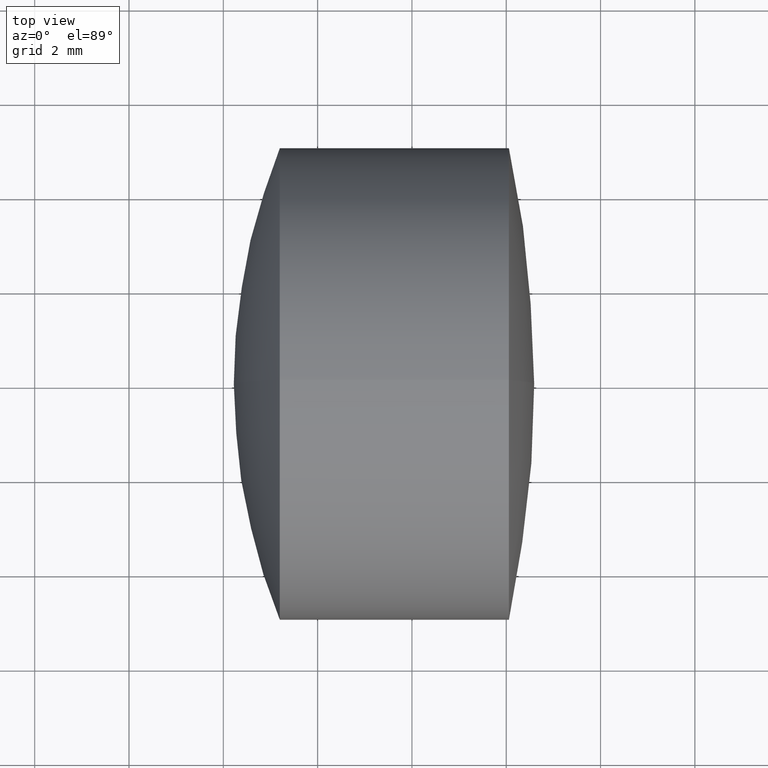
[diagram: clean part render]
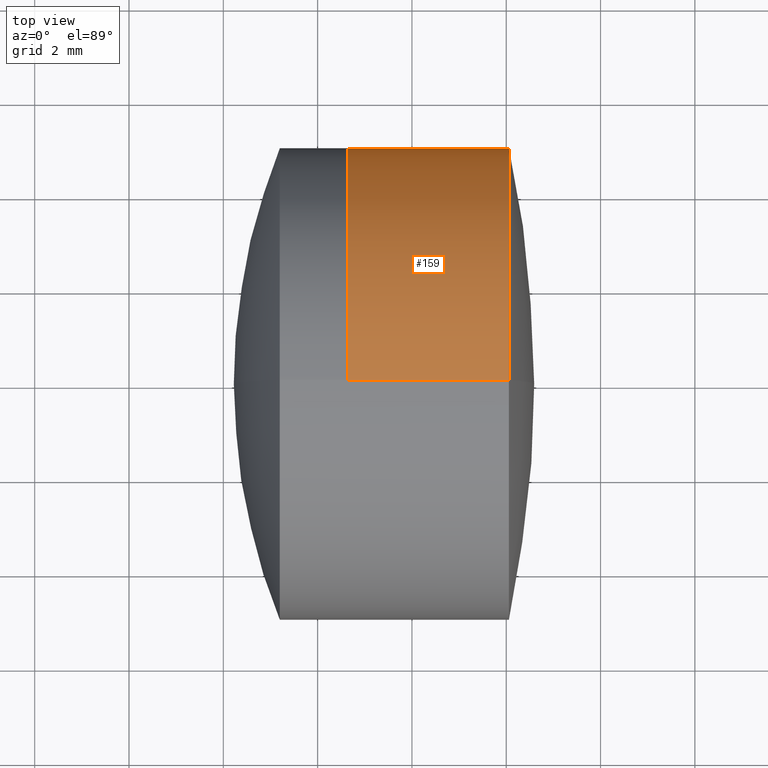
[diagram: same view with one face highlighted and labeled with its STEP entity id]
A machine part, top view. The second image highlights one B-rep face of the part: STEP entity #159.
In plain terms, the highlighted cylindrical surface (partial cylindrical patch) has radius 5 mm, axis along (-1, -0, -0).
Its self-contained STEP definition (entity closure, byte-faithful):
#18 = LINE ( 'NONE', #128, #74 ) ;
#22 = ORIENTED_EDGE ( 'NONE', *, *, #145, .F. ) ;
#26 = CIRCLE ( 'NONE', #223, 4.999999999999997300 ) ;
#28 = CARTESIAN_POINT ( 'NONE',  ( -0.5519199926577972300, 0.0000000000000000000, 0.0000000000000000000 ) ) ;
#43 = VERTEX_POINT ( 'NONE', #213 ) ;
#46 = CARTESIAN_POINT ( 'NONE',  ( 4.056503346783539000, 0.0000000000000000000, 0.0000000000000000000 ) ) ;
#52 = CYLINDRICAL_SURFACE ( 'NONE', #275, 4.999999999999998200 ) ;
#61 = FACE_OUTER_BOUND ( 'NONE', #155, .T. ) ;
#64 = VECTOR ( 'NONE', #289, 1000.000000000000000 ) ;
#70 = DIRECTION ( 'NONE',  ( 0.0000000000000000000, 0.0000000000000000000, 1.000000000000000000 ) ) ;
#74 = VECTOR ( 'NONE', #230, 1000.000000000000000 ) ;
#90 = LINE ( 'NONE', #171, #64 ) ;
#112 = DIRECTION ( 'NONE',  ( 0.0000000000000000000, 0.0000000000000000000, 1.000000000000000000 ) ) ;
#127 = CARTESIAN_POINT ( 'NONE',  ( 4.056503346783539000, 0.0000000000000000000, 4.999999999999997300 ) ) ;
#128 = CARTESIAN_POINT ( 'NONE',  ( -0.5519199926577972300, 0.0000000000000000000, 4.999999999999998200 ) ) ;
#135 = CARTESIAN_POINT ( 'NONE',  ( 0.6409706677806800100, 0.0000000000000000000, 0.0000000000000000000 ) ) ;
#137 = ORIENTED_EDGE ( 'NONE', *, *, #343, .F. ) ;
#145 = EDGE_CURVE ( 'NONE', #296, #43, #217, .T. ) ;
#148 = CARTESIAN_POINT ( 'NONE',  ( 4.056503346783539000, 6.123233995736764300E-016, -4.999999999999997300 ) ) ;
#155 = EDGE_LOOP ( 'NONE', ( #336, #251, #22, #137 ) ) ;
#159 = ADVANCED_FACE ( 'NONE', ( #61 ), #52, .T. ) ;
#171 = CARTESIAN_POINT ( 'NONE',  ( -0.5519199926577972300, 6.123233995736764300E-016, -4.999999999999998200 ) ) ;
#186 = DIRECTION ( 'NONE',  ( -1.000000000000000000, -0.0000000000000000000, -0.0000000000000000000 ) ) ;
#200 = CARTESIAN_POINT ( 'NONE',  ( 0.6409706677806795700, 0.0000000000000000000, 4.999999999999997300 ) ) ;
#213 = CARTESIAN_POINT ( 'NONE',  ( 0.6409706677806795700, 6.123233995736764300E-016, -4.999999999999997300 ) ) ;
#217 = CIRCLE ( 'NONE', #314, 4.999999999999999100 ) ;
#223 = AXIS2_PLACEMENT_3D ( 'NONE', #46, #227, #70 ) ;
#227 = DIRECTION ( 'NONE',  ( -1.000000000000000000, -0.0000000000000000000, -0.0000000000000000000 ) ) ;
#230 = DIRECTION ( 'NONE',  ( -1.000000000000000000, -0.0000000000000000000, -0.0000000000000000000 ) ) ;
#251 = ORIENTED_EDGE ( 'NONE', *, *, #301, .T. ) ;
#275 = AXIS2_PLACEMENT_3D ( 'NONE', #28, #186, #300 ) ;
#282 = EDGE_CURVE ( 'NONE', #340, #310, #26, .T. ) ;
#289 = DIRECTION ( 'NONE',  ( -1.000000000000000000, -0.0000000000000000000, -0.0000000000000000000 ) ) ;
#296 = VERTEX_POINT ( 'NONE', #200 ) ;
#298 = DIRECTION ( 'NONE',  ( -1.000000000000000000, -0.0000000000000000000, -0.0000000000000000000 ) ) ;
#300 = DIRECTION ( 'NONE',  ( 0.0000000000000000000, 0.0000000000000000000, 1.000000000000000000 ) ) ;
#301 = EDGE_CURVE ( 'NONE', #310, #43, #90, .T. ) ;
#310 = VERTEX_POINT ( 'NONE', #148 ) ;
#314 = AXIS2_PLACEMENT_3D ( 'NONE', #135, #298, #112 ) ;
#336 = ORIENTED_EDGE ( 'NONE', *, *, #282, .T. ) ;
#340 = VERTEX_POINT ( 'NONE', #127 ) ;
#343 = EDGE_CURVE ( 'NONE', #340, #296, #18, .T. ) ;